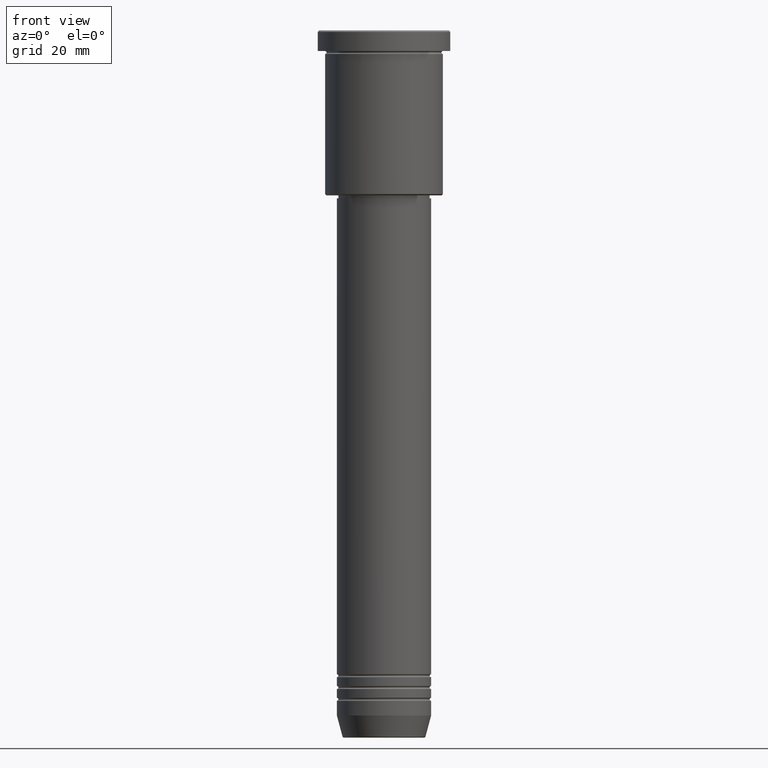
[diagram: clean part render]
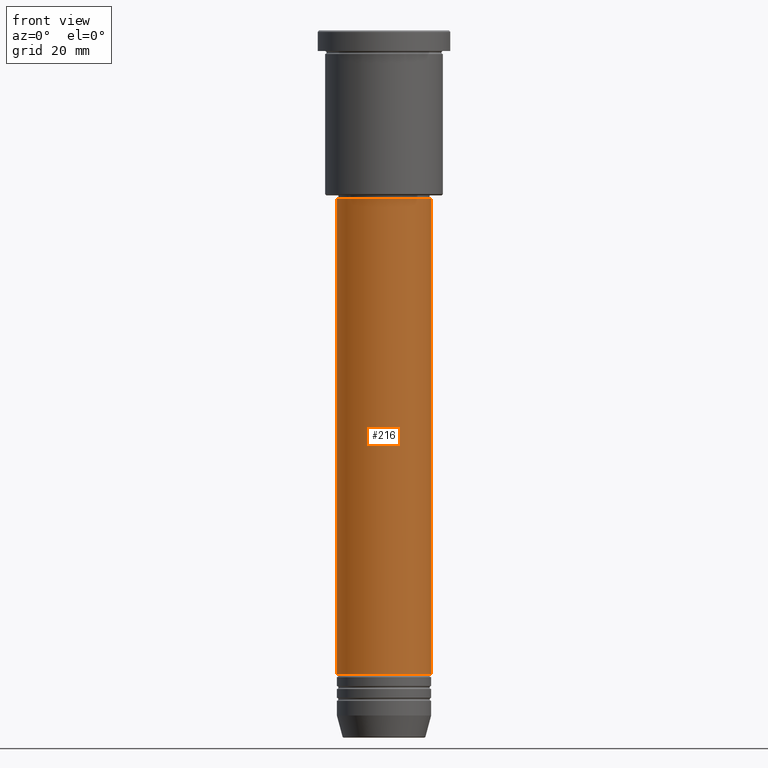
[diagram: same view with one face highlighted and labeled with its STEP entity id]
A machine part, front view. The second image highlights one B-rep face of the part: STEP entity #216.
In plain terms, the highlighted cylindrical surface (partial cylindrical patch) has radius 16 mm, axis along (-0, -0, 1).
Its self-contained STEP definition (entity closure, byte-faithful):
#13 = CARTESIAN_POINT ( 'NONE',  ( 0.000000000000000000, 0.000000000000000000, -57.00000000000002842 ) ) ;
#16 = EDGE_CURVE ( 'NONE', #896, #928, #500, .T. ) ;
#17 = DIRECTION ( 'NONE',  ( 1.000000000000000000, 0.000000000000000000, 0.000000000000000000 ) ) ;
#120 = CIRCLE ( 'NONE', #1075, 16.00000000000000000 ) ;
#153 = ORIENTED_EDGE ( 'NONE', *, *, #262, .T. ) ;
#200 = ORIENTED_EDGE ( 'NONE', *, *, #1109, .F. ) ;
#216 = ADVANCED_FACE ( 'NONE', ( #775 ), #1034, .T. ) ;
#251 = VERTEX_POINT ( 'NONE', #320 ) ;
#262 = EDGE_CURVE ( 'NONE', #251, #748, #977, .T. ) ;
#296 = DIRECTION ( 'NONE',  ( -0.000000000000000000, -0.000000000000000000, 1.000000000000000000 ) ) ;
#315 = CARTESIAN_POINT ( 'NONE',  ( -16.00000000000000000, 1.959434878635765131E-15, 0.000000000000000000 ) ) ;
#320 = CARTESIAN_POINT ( 'NONE',  ( 16.00000000000000000, 0.000000000000000000, -218.5000000000000000 ) ) ;
#332 = CARTESIAN_POINT ( 'NONE',  ( 0.000000000000000000, 0.000000000000000000, -218.5000000000000000 ) ) ;
#339 = DIRECTION ( 'NONE',  ( 1.000000000000000000, 0.000000000000000000, 0.000000000000000000 ) ) ;
#343 = DIRECTION ( 'NONE',  ( -0.000000000000000000, -0.000000000000000000, 1.000000000000000000 ) ) ;
#441 = CARTESIAN_POINT ( 'NONE',  ( 16.00000000000000000, 0.000000000000000000, 0.000000000000000000 ) ) ;
#500 = LINE ( 'NONE', #315, #602 ) ;
#524 = CARTESIAN_POINT ( 'NONE',  ( 0.000000000000000000, 0.000000000000000000, 0.000000000000000000 ) ) ;
#602 = VECTOR ( 'NONE', #296, 1000.000000000000000 ) ;
#681 = CARTESIAN_POINT ( 'NONE',  ( 16.00000000000000000, 0.000000000000000000, -57.00000000000002842 ) ) ;
#718 = AXIS2_PLACEMENT_3D ( 'NONE', #13, #837, #17 ) ;
#726 = CARTESIAN_POINT ( 'NONE',  ( -16.00000000000000000, 1.959434878635765131E-15, -57.00000000000002842 ) ) ;
#748 = VERTEX_POINT ( 'NONE', #681 ) ;
#773 = DIRECTION ( 'NONE',  ( 1.000000000000000000, 0.000000000000000000, 0.000000000000000000 ) ) ;
#775 = FACE_OUTER_BOUND ( 'NONE', #1027, .T. ) ;
#783 = CIRCLE ( 'NONE', #718, 16.00000000000000000 ) ;
#837 = DIRECTION ( 'NONE',  ( -0.000000000000000000, -0.000000000000000000, 1.000000000000000000 ) ) ;
#839 = EDGE_CURVE ( 'NONE', #896, #251, #120, .T. ) ;
#882 = DIRECTION ( 'NONE',  ( -0.000000000000000000, -0.000000000000000000, 1.000000000000000000 ) ) ;
#896 = VERTEX_POINT ( 'NONE', #1082 ) ;
#900 = ORIENTED_EDGE ( 'NONE', *, *, #839, .T. ) ;
#928 = VERTEX_POINT ( 'NONE', #726 ) ;
#935 = VECTOR ( 'NONE', #343, 1000.000000000000000 ) ;
#951 = AXIS2_PLACEMENT_3D ( 'NONE', #524, #882, #339 ) ;
#957 = ORIENTED_EDGE ( 'NONE', *, *, #16, .F. ) ;
#977 = LINE ( 'NONE', #441, #935 ) ;
#1027 = EDGE_LOOP ( 'NONE', ( #957, #900, #153, #200 ) ) ;
#1029 = DIRECTION ( 'NONE',  ( -0.000000000000000000, -0.000000000000000000, 1.000000000000000000 ) ) ;
#1034 = CYLINDRICAL_SURFACE ( 'NONE', #951, 16.00000000000000000 ) ;
#1075 = AXIS2_PLACEMENT_3D ( 'NONE', #332, #1029, #773 ) ;
#1082 = CARTESIAN_POINT ( 'NONE',  ( -16.00000000000000000, 1.959434878635765131E-15, -218.5000000000000000 ) ) ;
#1109 = EDGE_CURVE ( 'NONE', #928, #748, #783, .T. ) ;